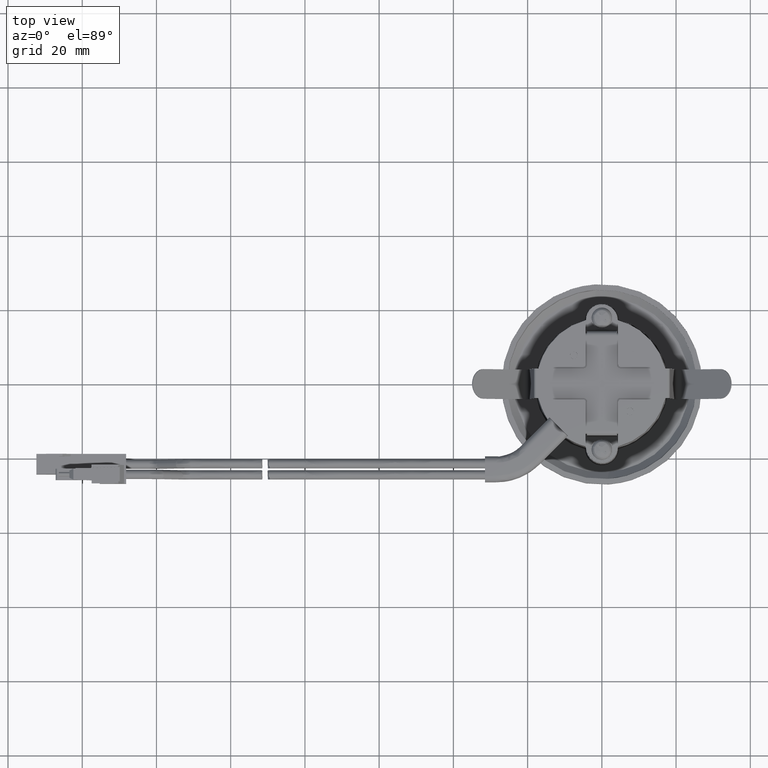
[diagram: clean part render]
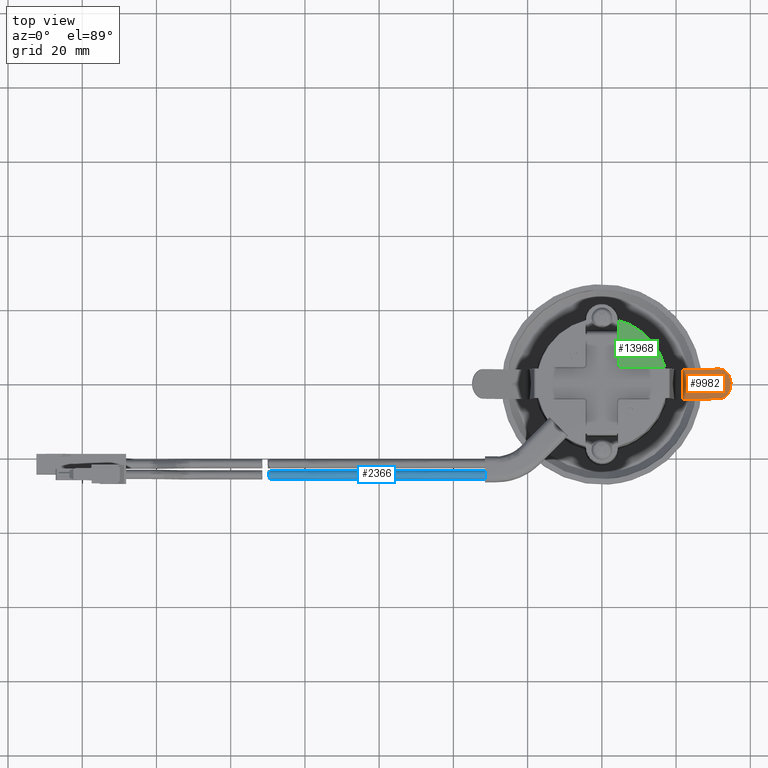
[diagram: same view with three faces highlighted in distinct colors, each labeled with its STEP entity id]
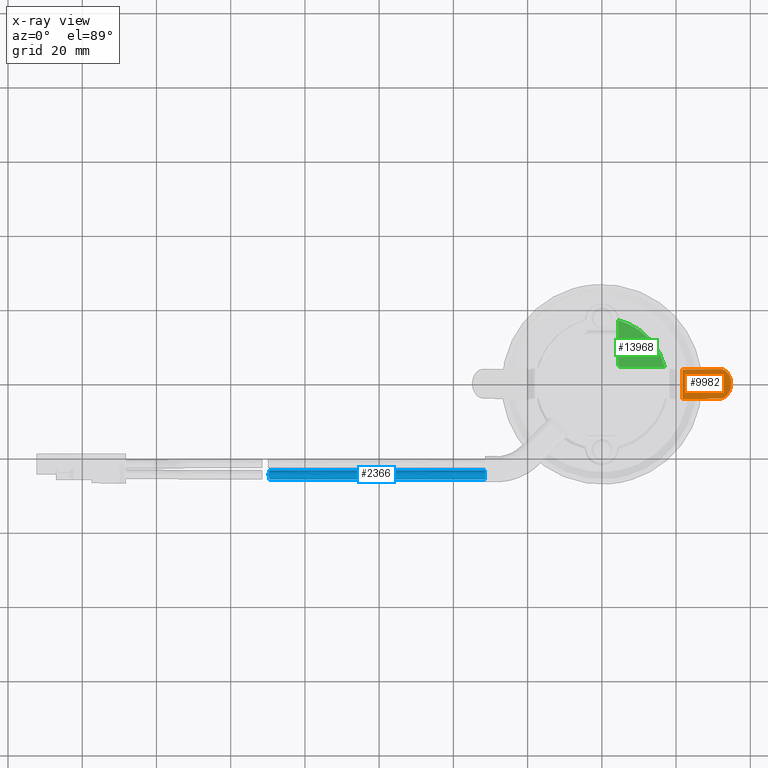
[diagram: x-ray of the same camera — body ghosted, the three highlighted faces saturated]
A machine part, top view with three faces highlighted in distinct colors.
The next image is the same camera in x-ray (body ghosted, the three faces saturated) — at least one of them is partly hidden behind the body in this view.
Their STEP definitions:

[orange] entity #9982 — the highlighted face is a freeform B-spline surface patch.
#8625=CARTESIAN_POINT('',(31.719833919201349,-3.999999999999800,12.186715824174140));
#8626=VERTEX_POINT('',#8625);
#8632=CARTESIAN_POINT('',(21.670459354844802,-3.999999999999780,3.754289333660160));
#8633=VERTEX_POINT('',#8632);
#8634=CARTESIAN_POINT('',(31.719833919201349,-3.999999999999800,12.186715824174140));
#8635=CARTESIAN_POINT('',(21.670459354844802,-3.999999999999780,3.754289333660160));
#8636=QUASI_UNIFORM_CURVE('',1,(#8634,#8635),.UNSPECIFIED.,.F.,.U.);
#8637=EDGE_CURVE('',#8626,#8633,#8636,.T.);
#9207=CARTESIAN_POINT('',(31.719833919201349,3.999999999998835,12.186715824174140));
#9208=VERTEX_POINT('',#9207);
#9209=CARTESIAN_POINT('',(31.719833919201349,-3.999999999999800,12.186715824174140));
#9210=CARTESIAN_POINT('',(32.045715037820372,-4.000203655979063,12.460162550614990));
#9211=CARTESIAN_POINT('',(32.697420480178359,-3.863042583480659,13.007008346933871));
#9212=CARTESIAN_POINT('',(33.463677517789357,-3.344167225349739,13.649974344580169));
#9213=CARTESIAN_POINT('',(34.023528434030460,-2.681425522662795,14.119745041912459));
#9214=CARTESIAN_POINT('',(34.466981278110190,-1.880980186307660,14.491846159824140));
#9215=CARTESIAN_POINT('',(34.732292499070930,-0.949016213472065,14.714468707479570));
#9216=CARTESIAN_POINT('',(34.806217488317067,0.032747247607722,14.776499138690831));
#9217=CARTESIAN_POINT('',(34.722966077353718,1.014486391139825,14.706642910456299));
#9218=CARTESIAN_POINT('',(34.430783078085589,1.968445020783507,14.461472263534461));
#9219=CARTESIAN_POINT('',(33.972435089846464,2.754452953827790,14.076872635651890));
#9220=CARTESIAN_POINT('',(33.457443810093153,3.334398451075207,13.644743642751431));
#9221=CARTESIAN_POINT('',(32.722379811053557,3.847427291620541,13.027951712265841));
#9222=CARTESIAN_POINT('',(32.095910725630020,4.000442337063271,12.502281733742420));
#9223=CARTESIAN_POINT('',(31.719833919201349,3.999999999998835,12.186715824174140));
#9224=B_SPLINE_CURVE_WITH_KNOTS('',3,(#9209,#9210,#9211,#9212,#9213,#9214,#9215,#9216,#9217,#9218,#9219,#9220,#9221,#9222,#9223),.UNSPECIFIED.,.F.,.U.,(4,1,1,1,1,1,1,1,1,1,1,1,4),(0.000000686626631,1.276199293866785,2.552606792289129,3.338043940655206,4.221677155183656,5.498025084810933,6.283343200150638,7.166909681309440,8.443182678078401,9.326831188038909,10.112259349022970,11.094048326722371,12.566685956253920),.UNSPECIFIED.);
#9225=EDGE_CURVE('',#8626,#9208,#9224,.T.);
#9944=CARTESIAN_POINT('',(21.670459354844802,3.999999999998785,3.754289333660160));
#9945=VERTEX_POINT('',#9944);
#9946=CARTESIAN_POINT('',(21.670459354844802,3.999999999998785,3.754289333660160));
#9947=CARTESIAN_POINT('',(21.670459354844802,-3.999999999999780,3.754289333660160));
#9948=QUASI_UNIFORM_CURVE('',1,(#9946,#9947),.UNSPECIFIED.,.F.,.U.);
#9949=EDGE_CURVE('',#9945,#8633,#9948,.T.);
#9967=CARTESIAN_POINT('',(21.015437441036699,-4.399599984494180,3.204660687370744));
#9968=CARTESIAN_POINT('',(35.439033957216687,-4.399599984494180,15.307495204347360));
#9969=CARTESIAN_POINT('',(21.015437441036699,4.399600199069936,3.204660687370744));
#9970=CARTESIAN_POINT('',(35.439033957216687,4.399600199069936,15.307495204347360));
#9971=B_SPLINE_SURFACE_WITH_KNOTS('',1,1,((#9967,#9969),(#9968,#9970)),.UNSPECIFIED.,.F.,.F.,.U.,(2,2),(2,2),(0.0,18.828668030609069),(0.0,8.799200183564116),.UNSPECIFIED.);
#9972=ORIENTED_EDGE('',*,*,#8637,.F.);
#9973=ORIENTED_EDGE('',*,*,#9225,.T.);
#9974=CARTESIAN_POINT('',(31.719833919201349,3.999999999998835,12.186715824174140));
#9975=CARTESIAN_POINT('',(21.670459354844802,3.999999999998785,3.754289333660160));
#9976=QUASI_UNIFORM_CURVE('',1,(#9974,#9975),.UNSPECIFIED.,.F.,.U.);
#9977=EDGE_CURVE('',#9208,#9945,#9976,.T.);
#9978=ORIENTED_EDGE('',*,*,#9977,.T.);
#9979=ORIENTED_EDGE('',*,*,#9949,.T.);
#9980=EDGE_LOOP('',(#9972,#9973,#9978,#9979));
#9981=FACE_OUTER_BOUND('',#9980,.T.);
#9982=ADVANCED_FACE('',(#9981),#9971,.T.);

[blue] entity #2366 — the highlighted face is a freeform B-spline surface patch.
#1825=CARTESIAN_POINT('',(-89.849185209620657,-23.334163900800760,15.523689158370949));
#1826=VERTEX_POINT('',#1825);
#1827=CARTESIAN_POINT('',(-89.684032931083919,-25.829501213607429,15.676310722016931));
#1828=VERTEX_POINT('',#1827);
#1922=CARTESIAN_POINT('',(-89.684032931083919,-25.829501213607429,15.676310722016931));
#1923=CARTESIAN_POINT('',(-89.679797482724297,-25.829225475712111,15.680816617259291));
#1924=CARTESIAN_POINT('',(-89.675616691929235,-25.828922408545900,15.685368860093920));
#1925=CARTESIAN_POINT('',(-89.656981333817924,-25.827423549462210,15.706135039317640));
#1926=CARTESIAN_POINT('',(-89.643148560990468,-25.825899243596961,15.722873878184661));
#1927=CARTESIAN_POINT('',(-89.616854040678831,-25.821985985541840,15.757490169564971));
#1928=CARTESIAN_POINT('',(-89.604336871432807,-25.819582456537990,15.775457374712859));
#1929=CARTESIAN_POINT('',(-89.569332606041769,-25.810928066566721,15.830412165241320));
#1930=CARTESIAN_POINT('',(-89.549517013979781,-25.803298298848460,15.868154771441811));
#1931=CARTESIAN_POINT('',(-89.524739868564467,-25.788504519345992,15.926112069377680));
#1932=CARTESIAN_POINT('',(-89.517308665851218,-25.783014389291019,15.945656487451689));
#1933=CARTESIAN_POINT('',(-89.504083446887307,-25.770809351754998,15.985156707768541));
#1934=CARTESIAN_POINT('',(-89.498272187920563,-25.764056806760291,16.005205105513490));
#1935=CARTESIAN_POINT('',(-89.483548414100269,-25.742221209360618,16.064774914720580));
#1936=CARTESIAN_POINT('',(-89.477214815480878,-25.725507773746362,16.103971161927412));
#1937=CARTESIAN_POINT('',(-89.470592460330636,-25.687593737336869,16.181107746271529));
#1938=CARTESIAN_POINT('',(-89.470350794764983,-25.666200376667970,16.219318108727180));
#1939=CARTESIAN_POINT('',(-89.475118571775738,-25.620000982309222,16.292238162617409));
#1940=CARTESIAN_POINT('',(-89.480070948224963,-25.595152035371850,16.327124113577899));
#1941=CARTESIAN_POINT('',(-89.494137829969844,-25.542016099224600,16.393904348115779));
#1942=CARTESIAN_POINT('',(-89.503323238477208,-25.513580486025361,16.425915578044020));
#1943=CARTESIAN_POINT('',(-89.535160295021043,-25.425271589372009,16.515409918155790));
#1944=CARTESIAN_POINT('',(-89.562149583864411,-25.361911541535701,16.567259466355068));
#1945=CARTESIAN_POINT('',(-89.606647027201490,-25.259806711721339,16.634925169389799));
#1946=CARTESIAN_POINT('',(-89.622213910277438,-25.224460720660179,16.655817237501971));
#1947=CARTESIAN_POINT('',(-89.653372934494641,-25.152444903154631,16.693587254700311));
#1948=CARTESIAN_POINT('',(-89.669025353431920,-25.115646613416420,16.710566281914950));
#1949=CARTESIAN_POINT('',(-89.699576449600343,-25.040210703570491,16.740861802426391));
#1950=CARTESIAN_POINT('',(-89.714479973991985,-25.001575188436082,16.754179151842958));
#1951=CARTESIAN_POINT('',(-89.742423303516688,-24.922042139350602,16.777093785988558));
#1952=CARTESIAN_POINT('',(-89.755519244459563,-24.880896353314480,16.786721956558861));
#1953=CARTESIAN_POINT('',(-89.777903878263189,-24.797660083617981,16.801649664133070));
#1954=CARTESIAN_POINT('',(-89.787241913259265,-24.755449500948089,16.807007928998789));
#1955=CARTESIAN_POINT('',(-89.797528597980204,-24.691076418381378,16.811762735147120));
#1956=CARTESIAN_POINT('',(-89.800338139765273,-24.669442393239219,16.812798826678939));
#1957=CARTESIAN_POINT('',(-89.804586369198972,-24.625794477286512,16.813730877487298));
#1958=CARTESIAN_POINT('',(-89.806022392962390,-24.603691670429541,16.813620005652961));
#1959=CARTESIAN_POINT('',(-89.809510199969196,-24.494201250400408,16.810175751920401));
#1960=CARTESIAN_POINT('',(-89.800392818715451,-24.408656495836819,16.798379945581221));
#1961=CARTESIAN_POINT('',(-89.766164093733835,-24.241077082220372,16.757841773326199));
#1962=CARTESIAN_POINT('',(-89.742250958463259,-24.162442869358362,16.730015913279040));
#1963=CARTESIAN_POINT('',(-89.703889622843249,-24.049374479621161,16.677595758188890));
#1964=CARTESIAN_POINT('',(-89.690642043073908,-24.012525401567391,16.658312283979001));
#1965=CARTESIAN_POINT('',(-89.664143252100033,-23.940276965384019,16.615916949250039));
#1966=CARTESIAN_POINT('',(-89.651013631397532,-23.905209998731500,16.592986688070301));
#1967=CARTESIAN_POINT('',(-89.613477902791686,-23.803677201654502,16.519395806087761));
#1968=CARTESIAN_POINT('',(-89.590726275250603,-23.740464539009150,16.463820896322360));
#1969=CARTESIAN_POINT('',(-89.564719770415067,-23.652093715060289,16.368815102685200));
#1970=CARTESIAN_POINT('',(-89.557429217654359,-23.623679901213901,16.335063599130908));
#1971=CARTESIAN_POINT('',(-89.546916515089549,-23.570705300440299,16.265219055499649));
#1972=CARTESIAN_POINT('',(-89.543618949068474,-23.545932594944649,16.228919375519052));
#1973=CARTESIAN_POINT('',(-89.541899169977796,-23.499873887592489,16.153418838057529));
#1974=CARTESIAN_POINT('',(-89.543544680351133,-23.478430050729148,16.113828542303899));
#1975=CARTESIAN_POINT('',(-89.552648697651435,-23.440531808540751,16.034430660081110));
#1976=CARTESIAN_POINT('',(-89.560050118185117,-23.423922855551758,15.994449340659610));
#1977=CARTESIAN_POINT('',(-89.575959017334085,-23.402291998741770,15.934246337404581));
#1978=CARTESIAN_POINT('',(-89.582065611206374,-23.395629760303859,15.914140324037399));
#1979=CARTESIAN_POINT('',(-89.596014401646059,-23.383372689657921,15.873888347482980));
#1980=CARTESIAN_POINT('',(-89.603906853077831,-23.377756970191310,15.853643123483581));
#1981=CARTESIAN_POINT('',(-89.629823221335769,-23.362778323165049,15.794215204669980));
#1982=CARTESIAN_POINT('',(-89.650149261098633,-23.355158361812411,15.756014678280181));
#1983=CARTESIAN_POINT('',(-89.697046492579673,-23.343672921202739,15.682671145487710));
#1984=CARTESIAN_POINT('',(-89.723892592239466,-23.339800816005191,15.647248473703810));
#1985=CARTESIAN_POINT('',(-89.782724569995665,-23.335066786951099,15.581637813792170));
#1986=CARTESIAN_POINT('',(-89.814665202588941,-23.334162053504912,15.551370709562519));
#1987=CARTESIAN_POINT('',(-89.849185209620657,-23.334163900800760,15.523689158370949));
#1988=B_SPLINE_CURVE_WITH_KNOTS('',3,(#1922,#1923,#1924,#1925,#1926,#1927,#1928,#1929,#1930,#1931,#1932,#1933,#1934,#1935,#1936,#1937,#1938,#1939,#1940,#1941,#1942,#1943,#1944,#1945,#1946,#1947,#1948,#1949,#1950,#1951,#1952,#1953,#1954,#1955,#1956,#1957,#1958,#1959,#1960,#1961,#1962,#1963,#1964,#1965,#1966,#1967,#1968,#1969,#1970,#1971,#1972,#1973,#1974,#1975,#1976,#1977,#1978,#1979,#1980,#1981,#1982,#1983,#1984,#1985,#1986,#1987),.UNSPECIFIED.,.F.,.U.,(4,2,2,2,2,2,2,2,2,2,2,2,2,2,2,2,2,2,2,2,2,2,2,2,2,2,2,2,2,2,2,2,4),(0.026806246599622,0.031249999999998,0.046875000000000,0.062500000000002,0.093750000000008,0.109375000000008,0.125000000000009,0.156250000000010,0.187500000000011,0.218750000000013,0.250000000000014,0.312500000000015,0.343750000000016,0.375000000000017,0.406250000000018,0.437500000000019,0.468750000000020,0.484375000000019,0.500000000000018,0.562500000000012,0.625000000000007,0.656250000000006,0.687500000000005,0.750000000000001,0.781249999999999,0.812499999999996,0.843749999999994,0.874999999999991,0.890624999999992,0.906249999999993,0.937499999999996,0.968749999999998,1.0),.UNSPECIFIED.);
#1989=EDGE_CURVE('',#1828,#1826,#1988,.T.);
#2301=CARTESIAN_POINT('',(-91.527680977666975,-23.334164087671450,15.523689325578831));
#2302=CARTESIAN_POINT('',(-91.527680977666975,-23.257853413252878,16.771357823606184));
#2303=CARTESIAN_POINT('',(-91.527680977666975,-24.505521911280230,16.847668498024749));
#2304=CARTESIAN_POINT('',(-91.527680977666975,-25.753190409307578,16.923979172443325));
#2305=CARTESIAN_POINT('',(-91.527680977666975,-25.829501083726150,15.676310674415969));
#2306=CARTESIAN_POINT('',(-29.965082094511761,-23.334164087671450,15.523689325578831));
#2307=CARTESIAN_POINT('',(-29.965082094511757,-23.257853413252878,16.771357823606184));
#2308=CARTESIAN_POINT('',(-29.965082094511761,-24.505521911280230,16.847668498024749));
#2309=CARTESIAN_POINT('',(-29.965082094511757,-25.753190409307578,16.923979172443325));
#2310=CARTESIAN_POINT('',(-29.965082094511761,-25.829501083726150,15.676310674415969));
#2318=(BOUNDED_SURFACE()B_SPLINE_SURFACE(2,1,((#2301,#2306),(#2302,#2307),(#2303,#2308),(#2304,#2309),(#2305,#2310)),.UNSPECIFIED.,.F.,.F.,.U.)B_SPLINE_SURFACE_WITH_KNOTS((3,2,3),(2,2),(3.141592653589793,4.712388980384690,6.283185307179586),(0.0,61.562598883155232),.UNSPECIFIED.)GEOMETRIC_REPRESENTATION_ITEM()RATIONAL_B_SPLINE_SURFACE(((1.0,1.0),(0.707106781186548,0.707106781186548),(1.0,1.0),(0.707106781186548,0.707106781186548),(1.0,1.0)))REPRESENTATION_ITEM('')SURFACE());
#2319=CARTESIAN_POINT('',(-31.466608896539949,-23.334164087769530,15.523689323975130));
#2320=VERTEX_POINT('',#2319);
#2321=CARTESIAN_POINT('',(-89.849185209620657,-23.334163900800760,15.523689158370949));
#2322=CARTESIAN_POINT('',(-31.466608896539949,-23.334164087769530,15.523689323975130));
#2323=QUASI_UNIFORM_CURVE('',1,(#2321,#2322),.UNSPECIFIED.,.F.,.U.);
#2324=EDGE_CURVE('',#1826,#2320,#2323,.T.);
#2325=ORIENTED_EDGE('',*,*,#2324,.F.);
#2326=ORIENTED_EDGE('',*,*,#1989,.F.);
#2327=CARTESIAN_POINT('',(-31.466608896539949,-25.829501083628060,15.676310676019670));
#2328=VERTEX_POINT('',#2327);
#2329=CARTESIAN_POINT('',(-89.684032931083919,-25.829501213607429,15.676310722016931));
#2330=CARTESIAN_POINT('',(-31.466608896539949,-25.829501083628060,15.676310676019670));
#2331=QUASI_UNIFORM_CURVE('',1,(#2329,#2330),.UNSPECIFIED.,.F.,.U.);
#2332=EDGE_CURVE('',#1828,#2328,#2331,.T.);
#2333=ORIENTED_EDGE('',*,*,#2332,.T.);
#2334=CARTESIAN_POINT('',(-31.466608896539949,-24.581832585698798,16.849999999997419));
#2335=VERTEX_POINT('',#2334);
#2336=CARTESIAN_POINT('',(-31.466608896539949,-24.581832585698798,16.849999999997419));
#2337=CARTESIAN_POINT('',(-31.466608896539945,-25.757715167816691,16.849999999997426));
#2338=CARTESIAN_POINT('',(-31.466608896539942,-25.829501083628063,15.676310676019664));
#2346=(BOUNDED_CURVE()B_SPLINE_CURVE(2,(#2336,#2337,#2338),.UNSPECIFIED.,.F.,.U.)B_SPLINE_CURVE_WITH_KNOTS((3,3),(0.500000000000000,0.739332962020185),.UNSPECIFIED.)CURVE()GEOMETRIC_REPRESENTATION_ITEM()RATIONAL_B_SPLINE_CURVE((1.0,0.719603993543001,0.976072041197877))REPRESENTATION_ITEM(''));
#2347=EDGE_CURVE('',#2335,#2328,#2346,.T.);
#2348=ORIENTED_EDGE('',*,*,#2347,.F.);
#2349=CARTESIAN_POINT('',(-31.466608896539942,-23.334164087769537,15.523689323975127));
#2350=CARTESIAN_POINT('',(-31.466608896539949,-23.331832585698780,15.561809045070063));
#2351=CARTESIAN_POINT('',(-31.466608896539949,-23.331832585698780,15.599999999997401));
#2352=CARTESIAN_POINT('',(-31.466608896539942,-23.331832585698780,16.849999999997415));
#2353=CARTESIAN_POINT('',(-31.466608896539949,-24.581832585698798,16.849999999997419));
#2361=(BOUNDED_CURVE()B_SPLINE_CURVE(2,(#2349,#2350,#2351,#2352,#2353),.UNSPECIFIED.,.F.,.U.)B_SPLINE_CURVE_WITH_KNOTS((3,2,3),(0.239332962020184,0.250000000000000,0.500000000000000),.UNSPECIFIED.)CURVE()GEOMETRIC_REPRESENTATION_ITEM()RATIONAL_B_SPLINE_CURVE((0.976072041197876,0.987502787643546,1.0,0.707106781186548,1.0))REPRESENTATION_ITEM(''));
#2362=EDGE_CURVE('',#2320,#2335,#2361,.T.);
#2363=ORIENTED_EDGE('',*,*,#2362,.F.);
#2364=EDGE_LOOP('',(#2325,#2326,#2333,#2348,#2363));
#2365=FACE_OUTER_BOUND('',#2364,.T.);
#2366=ADVANCED_FACE('',(#2365),#2318,.T.);

[green] entity #13968 — the highlighted face is a freeform B-spline surface patch.
#13222=CARTESIAN_POINT('',(5.000000000009540,4.400000000000065,21.599999999999248));
#13223=VERTEX_POINT('',#13222);
#13229=CARTESIAN_POINT('',(4.400000000008500,5.000000000001100,21.599999999999248));
#13230=VERTEX_POINT('',#13229);
#13231=CARTESIAN_POINT('',(4.400000000008500,5.000000000001100,21.599999999999248));
#13232=CARTESIAN_POINT('',(4.399750365141334,4.891954806918044,21.599999999999039));
#13233=CARTESIAN_POINT('',(4.457124218403387,4.686066364619856,21.599999999998680));
#13234=CARTESIAN_POINT('',(4.686083699355145,4.457143367749815,21.599999999998950));
#13235=CARTESIAN_POINT('',(4.891943037586633,4.399720343930291,21.599999999998410));
#13236=CARTESIAN_POINT('',(5.000000000009540,4.400000000000065,21.599999999999248));
#13237=B_SPLINE_CURVE_WITH_KNOTS('',3,(#13231,#13232,#13233,#13234,#13235,#13236),.UNSPECIFIED.,.F.,.U.,(4,1,1,4),(0.000001048372690,0.324025487806602,0.618547890955018,0.942572330388941),.UNSPECIFIED.);
#13238=EDGE_CURVE('',#13230,#13223,#13237,.T.);
#13427=CARTESIAN_POINT('',(16.976985899325950,4.400000000000221,21.599999999999248));
#13428=VERTEX_POINT('',#13427);
#13429=CARTESIAN_POINT('',(5.000000000009540,4.400000000000065,21.599999999999248));
#13430=CARTESIAN_POINT('',(16.976985899325950,4.400000000000221,21.599999999999248));
#13431=QUASI_UNIFORM_CURVE('',1,(#13429,#13430),.UNSPECIFIED.,.F.,.U.);
#13432=EDGE_CURVE('',#13223,#13428,#13431,.T.);
#13463=CARTESIAN_POINT('',(4.400000000008500,16.976985899317501,21.599999999999248));
#13464=VERTEX_POINT('',#13463);
#13465=CARTESIAN_POINT('',(4.400000000008500,16.976985899317501,21.599999999999248));
#13466=CARTESIAN_POINT('',(4.400000000008500,5.000000000001100,21.599999999999248));
#13467=QUASI_UNIFORM_CURVE('',1,(#13465,#13466),.UNSPECIFIED.,.F.,.U.);
#13468=EDGE_CURVE('',#13464,#13230,#13467,.T.);
#13945=CARTESIAN_POINT('',(3.771779578714234,17.605206320611771,21.599999999998751));
#13946=CARTESIAN_POINT('',(17.605206657961268,17.605206320611771,21.599999999998751));
#13947=CARTESIAN_POINT('',(3.771779578714234,3.771779241364748,21.599999999998751));
#13948=CARTESIAN_POINT('',(17.605206657961268,3.771779241364748,21.599999999998751));
#13949=B_SPLINE_SURFACE_WITH_KNOTS('',1,1,((#13945,#13947),(#13946,#13948)),.UNSPECIFIED.,.F.,.F.,.U.,(2,2),(2,2),(0.0,13.833427079247031),(0.0,13.833427079247020),.UNSPECIFIED.);
#13950=ORIENTED_EDGE('',*,*,#13468,.T.);
#13951=ORIENTED_EDGE('',*,*,#13238,.T.);
#13952=ORIENTED_EDGE('',*,*,#13432,.T.);
#13953=CARTESIAN_POINT('',(16.976985899325950,4.400000000000221,21.599999999999248));
#13954=CARTESIAN_POINT('',(14.388279604732485,14.388279604724154,21.599999999998754));
#13955=CARTESIAN_POINT('',(4.400000000008506,16.976985899317508,21.599999999998751));
#13963=(BOUNDED_CURVE()B_SPLINE_CURVE(2,(#13953,#13954,#13955),.UNSPECIFIED.,.F.,.U.)CURVE()GEOMETRIC_REPRESENTATION_ITEM()QUASI_UNIFORM_CURVE()RATIONAL_B_SPLINE_CURVE((1.0,0.861893892314509,1.0))REPRESENTATION_ITEM(''));
#13964=EDGE_CURVE('',#13428,#13464,#13963,.T.);
#13965=ORIENTED_EDGE('',*,*,#13964,.T.);
#13966=EDGE_LOOP('',(#13950,#13951,#13952,#13965));
#13967=FACE_OUTER_BOUND('',#13966,.T.);
#13968=ADVANCED_FACE('',(#13967),#13949,.F.);